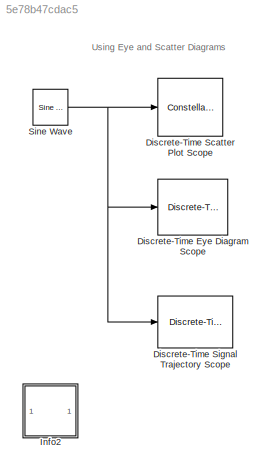
MODEL slx_5e78b47cdac5
KIND model
BLOCK [Reference] Discrete-Time Eye Diagram Scope  REF=commsink2/Discrete-Time
Eye Diagram
Scope
  AxisGrid = on
  FigPos = figposition([42.5 55 35 35]);
  FrameNumber = off
  LineColors = b
  LineStyles = -
  Ports = [1]
  SourceBlock = commsink2/Discrete-Time\nEye Diagram\nScope
  SourceType = Discrete-Time Eye Diagram Scope
  Tag = EyeDiagram
  block_type_ = eye
  dispDiagram = In-phase and Quadrature
  dupPoints = on
  fading = on
  figTitle = Eye Diagram
  inphaseLabel = In-phase Amplitude
  numLinesMax = 8
  numNewFrames = 10
  numTraces = 40
  offsetEye = 0
  openScopeAtSimStart = on
  quadratureLabel = Quadrature Amplitude
  render = on
  sampPerSymb = 16
  symbPerTrace = 1
  yMax = 1.5
  yMin = -1.5
BLOCK [ConstellationDiagram] Discrete-Time Scatter Plot Scope
  Ports = [1]
  Tag = ScatterPlot
BLOCK [Reference] Discrete-Time Signal Trajectory Scope  REF=commsink2/Discrete-Time
Signal Trajectory
Scope
  AxisGrid = on
  FigPos = get(0,'defaultfigureposition');
  FrameNumber = off
  LineColors = b
  LineStyles = -
  Ports = [1]
  SourceBlock = commsink2/Discrete-Time\nSignal Trajectory\nScope
  SourceType = Discrete-Time Signal Trajectory Scope
  Tag = SignalTrajectory
  block_type_ = xy
  fading = on
  figTitle = Signal Trajectory
  inphaseLabel = In-phase Amplitude
  numLinesMax = 8
  numNewFrames = 40
  numTraces = 40
  offsetEye = 0
  openScopeAtSimStart = on
  quadratureLabel = Quadrature Amplitude
  render = on
  sampPerSymb = 8
  xMax = 3.315
  xMin = -3.3
  yMax = 3.315
  yMin = -3.3
BLOCK [SubSystem] Info2
  AncestorBlock = commblksprivate/Info
  OpenFcn = helpview([docroot '/toolbox/comm/comm.map'], 'doc_eyediagram')
  Ports = []
  RequestExecContextInheritance = off
BLOCK [Reference] Sine Wave  REF=dspsrcs4/Sine Wave
  Amplitude = 1
  CompMethod = Trigonometric fcn
  Frequency = .502
  LastOutDataTypeStr = double
  OutComplex = Complex
  OutDataTypeStr = double
  Phase = 0
  Ports = [0, 1]
  ResetState = Restart at time zero
  SampleMode = Discrete
  SampleTime = 1/16
  SamplesPerFrame = 1
  SourceBlock = dspsrcs4/Sine Wave
  SourceType = Sine Wave
  TableSize = Speed
  additionalParams = off
  allowOverrides = on
  dataType = double
  fracBitsMode = Best precision
  numFracBits = 14
  udDataType = sfix(16)
  wordLen = 16
ANNOTATION (root): Using Eye and Scatter Diagrams
NET Sine Wave:1 -> Discrete-Time Eye Diagram Scope:1, Discrete-Time Scatter Plot Scope:1, Discrete-Time Signal Trajectory Scope:1
note: NET lines group one-source signal fan-out (src -> all destinations, sorted); 1:1 wires keep LINE
